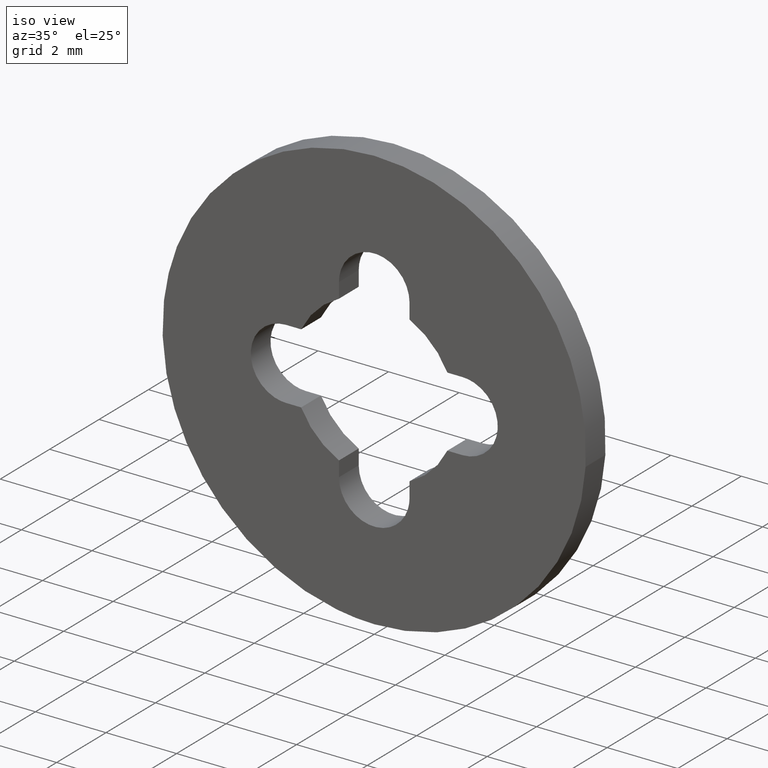
[diagram: clean part render]
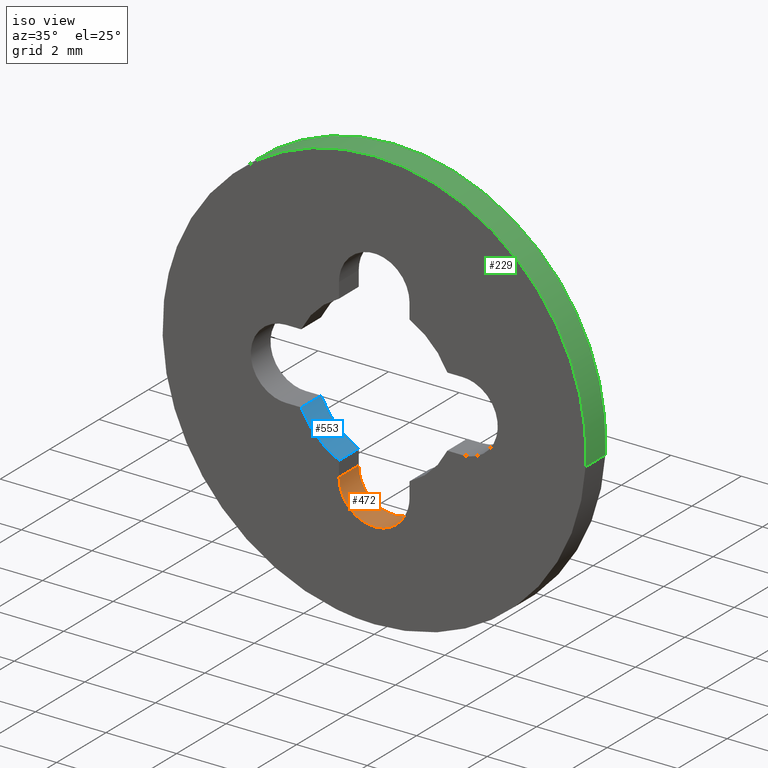
[diagram: same view with three faces highlighted in distinct colors, each labeled with its STEP entity id]
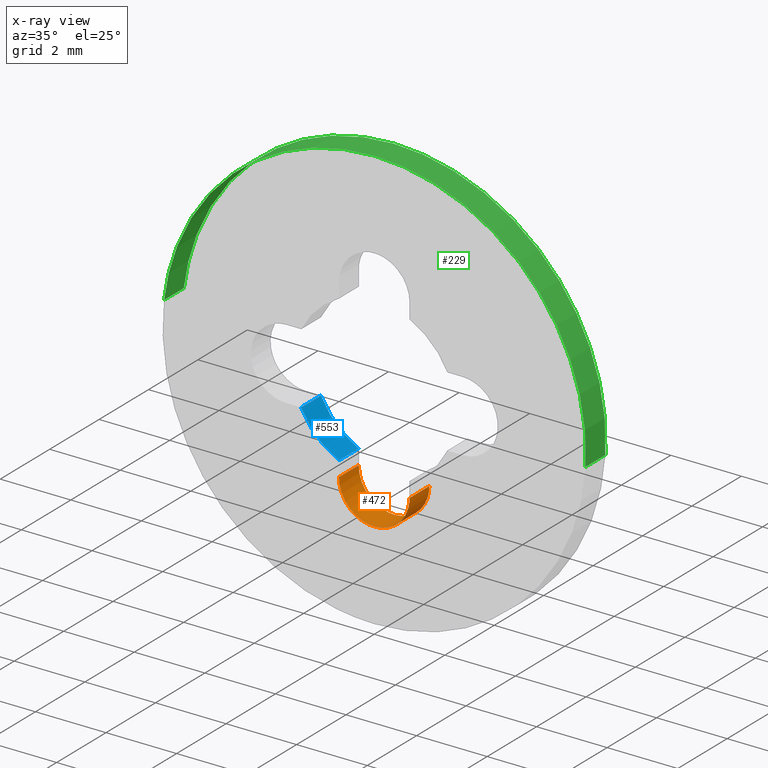
[diagram: x-ray of the same camera — body ghosted, the three highlighted faces saturated]
A machine part, iso view with three faces highlighted in distinct colors.
The next image is the same camera in x-ray (body ghosted, the three faces saturated) — at least one of them is partly hidden behind the body in this view.
Their STEP definitions:

[orange] entity #472 — the highlighted face is a freeform B-spline surface patch.
#385=CARTESIAN_POINT('',(0.999999999999985,0.0,-2.499999825467075));
#386=VERTEX_POINT('',#385);
#393=CARTESIAN_POINT('',(0.999999999999985,0.800000000000023,-2.499999825467075));
#394=VERTEX_POINT('',#393);
#400=CARTESIAN_POINT('',(0.999999999999985,0.800000000000023,-2.499999825467075));
#401=CARTESIAN_POINT('',(0.999999999999985,0.0,-2.499999825467075));
#402=QUASI_UNIFORM_CURVE('',1,(#400,#401),.UNSPECIFIED.,.F.,.U.);
#403=EDGE_CURVE('',#394,#386,#402,.T.);
#408=CARTESIAN_POINT('',(0.999048221581857,0.820000000000024,-2.456380612634666));
#409=CARTESIAN_POINT('',(0.999048221581857,-0.020500000000001,-2.456380612634666));
#410=CARTESIAN_POINT('',(1.045416995952383,0.820000000000024,-3.518400149585318));
#411=CARTESIAN_POINT('',(1.045416995952383,-0.020500000000001,-3.518400149585318));
#412=CARTESIAN_POINT('',(-0.017452406437285,0.820000000000024,-3.499847695156391));
#413=CARTESIAN_POINT('',(-0.017452406437285,-0.020500000000001,-3.499847695156391));
#414=CARTESIAN_POINT('',(-1.080321808826952,0.820000000000024,-3.481295240727462));
#415=CARTESIAN_POINT('',(-1.080321808826952,-0.020500000000001,-3.481295240727462));
#416=CARTESIAN_POINT('',(-0.996917333733127,0.820000000000024,-2.421540904272154));
#417=CARTESIAN_POINT('',(-0.996917333733127,-0.020500000000001,-2.421540904272154));
#425=(BOUNDED_SURFACE()B_SPLINE_SURFACE(1,2,((#408,#410,#412,#414,#416),(#409,#411,#413,#415,#417)),.UNSPECIFIED.,.F.,.F.,.U.)B_SPLINE_SURFACE_WITH_KNOTS((2,2),(3,2,3),(0.0,1.0),(0.0,1.0,2.0),.UNSPECIFIED.)GEOMETRIC_REPRESENTATION_ITEM()RATIONAL_B_SPLINE_SURFACE(((1.0,0.685182990326359,1.0,0.685182990326359,1.0),(1.0,0.685182990326359,1.0,0.685182990326359,1.0)))REPRESENTATION_ITEM('')SURFACE());
#426=CARTESIAN_POINT('',(-1.000000000000018,0.0,-2.500000000000000));
#427=VERTEX_POINT('',#426);
#428=CARTESIAN_POINT('',(-1.000000000000018,0.0,-2.500000000000000));
#429=CARTESIAN_POINT('',(-1.0,0.0,-3.077350307974721));
#430=CARTESIAN_POINT('',(-0.499999949616683,0.0,-3.366025432873258));
#431=CARTESIAN_POINT('',(0.000000100766633,0.0,-3.654700557771795));
#432=CARTESIAN_POINT('',(0.500000100766628,0.0,-3.366025345606791));
#433=CARTESIAN_POINT('',(1.000000100766623,0.0,-3.077350133441787));
#434=CARTESIAN_POINT('',(0.999999999999985,0.0,-2.499999825467075));
#442=(BOUNDED_CURVE()B_SPLINE_CURVE(2,(#428,#429,#430,#431,#432,#433,#434),.UNSPECIFIED.,.F.,.U.)B_SPLINE_CURVE_WITH_KNOTS((3,2,2,3),(0.0,0.333333333333333,0.666666666666667,1.0),.UNSPECIFIED.)CURVE()GEOMETRIC_REPRESENTATION_ITEM()RATIONAL_B_SPLINE_CURVE((1.0,0.866025389240028,1.0,0.866025389240028,1.0,0.866025389240028,1.0))REPRESENTATION_ITEM(''));
#443=EDGE_CURVE('',#427,#386,#442,.T.);
#444=ORIENTED_EDGE('',*,*,#443,.T.);
#445=ORIENTED_EDGE('',*,*,#403,.F.);
#446=CARTESIAN_POINT('',(-1.000000000000018,0.800000000000023,-2.500000000000000));
#447=VERTEX_POINT('',#446);
#448=CARTESIAN_POINT('',(-1.000000000000018,0.800000000000023,-2.500000000000000));
#449=CARTESIAN_POINT('',(-1.0,0.800000000000023,-3.077350307974721));
#450=CARTESIAN_POINT('',(-0.499999949616683,0.800000000000023,-3.366025432873258));
#451=CARTESIAN_POINT('',(0.000000100766633,0.800000000000023,-3.654700557771795));
#452=CARTESIAN_POINT('',(0.500000100766628,0.800000000000023,-3.366025345606791));
#453=CARTESIAN_POINT('',(1.000000100766623,0.800000000000023,-3.077350133441787));
#454=CARTESIAN_POINT('',(0.999999999999985,0.800000000000023,-2.499999825467075));
#462=(BOUNDED_CURVE()B_SPLINE_CURVE(2,(#448,#449,#450,#451,#452,#453,#454),.UNSPECIFIED.,.F.,.U.)B_SPLINE_CURVE_WITH_KNOTS((3,2,2,3),(0.0,0.333333333333333,0.666666666666667,1.0),.UNSPECIFIED.)CURVE()GEOMETRIC_REPRESENTATION_ITEM()RATIONAL_B_SPLINE_CURVE((1.0,0.866025389240028,1.0,0.866025389240028,1.0,0.866025389240028,1.0))REPRESENTATION_ITEM(''));
#463=EDGE_CURVE('',#447,#394,#462,.T.);
#464=ORIENTED_EDGE('',*,*,#463,.F.);
#465=CARTESIAN_POINT('',(-1.000000000000018,0.800000000000023,-2.500000000000000));
#466=CARTESIAN_POINT('',(-1.000000000000018,0.0,-2.500000000000000));
#467=QUASI_UNIFORM_CURVE('',1,(#465,#466),.UNSPECIFIED.,.F.,.U.);
#468=EDGE_CURVE('',#447,#427,#467,.T.);
#469=ORIENTED_EDGE('',*,*,#468,.T.);
#470=EDGE_LOOP('',(#444,#445,#464,#469));
#471=FACE_OUTER_BOUND('',#470,.T.);
#472=ADVANCED_FACE('',(#471),#425,.F.);

[blue] entity #553 — the highlighted face is a freeform B-spline surface patch.
#478=CARTESIAN_POINT('',(-1.000000000000020,0.0,-2.071231517720785));
#479=VERTEX_POINT('',#478);
#486=CARTESIAN_POINT('',(-1.000000000000020,0.800000000000023,-2.071231517720785));
#487=VERTEX_POINT('',#486);
#493=CARTESIAN_POINT('',(-1.000000000000020,0.800000000000023,-2.071231517720785));
#494=CARTESIAN_POINT('',(-1.000000000000020,0.0,-2.071231517720785));
#495=QUASI_UNIFORM_CURVE('',1,(#493,#494),.UNSPECIFIED.,.F.,.U.);
#496=EDGE_CURVE('',#487,#479,#495,.T.);
#501=CARTESIAN_POINT('',(-0.931786230015195,0.820000000000024,-2.102801564949501));
#502=CARTESIAN_POINT('',(-0.931786230015195,-0.020500000000001,-2.102801564949501));
#503=CARTESIAN_POINT('',(-1.743536492991471,0.820000000000024,-1.743101567641065));
#504=CARTESIAN_POINT('',(-1.743536492991471,-0.020500000000001,-1.743101567641065));
#505=CARTESIAN_POINT('',(-2.103033962666878,0.820000000000024,-0.931261591535725));
#506=CARTESIAN_POINT('',(-2.103033962666878,-0.020500000000001,-0.931261591535725));
#514=(BOUNDED_SURFACE()B_SPLINE_SURFACE(1,2,((#501,#503,#505),(#502,#504,#506)),.UNSPECIFIED.,.F.,.F.,.U.)B_SPLINE_SURFACE_WITH_KNOTS((2,2),(3,3),(0.0,1.0),(0.003884344423376,0.940668572610058),.UNSPECIFIED.)GEOMETRIC_REPRESENTATION_ITEM()RATIONAL_B_SPLINE_SURFACE(((0.999410940804473,0.928656460605345,0.991503249342292),(0.999410940804473,0.928656460605345,0.991503249342292)))REPRESENTATION_ITEM('')SURFACE());
#515=CARTESIAN_POINT('',(-2.071231517720795,0.0,-1.0));
#516=VERTEX_POINT('',#515);
#517=CARTESIAN_POINT('',(-2.071231517720797,0.0,-1.000000000000002));
#518=CARTESIAN_POINT('',(-1.722436087763841,0.0,-1.722436087763824));
#519=CARTESIAN_POINT('',(-1.000000000000021,0.0,-2.071231517720788));
#527=(BOUNDED_CURVE()B_SPLINE_CURVE(2,(#517,#518,#519),.UNSPECIFIED.,.F.,.U.)CURVE()GEOMETRIC_REPRESENTATION_ITEM()QUASI_UNIFORM_CURVE()RATIONAL_B_SPLINE_CURVE((1.0,0.944212449032275,1.0))REPRESENTATION_ITEM(''));
#528=EDGE_CURVE('',#516,#479,#527,.T.);
#529=ORIENTED_EDGE('',*,*,#528,.T.);
#530=ORIENTED_EDGE('',*,*,#496,.F.);
#531=CARTESIAN_POINT('',(-2.071231517720795,0.800000000000023,-1.0));
#532=VERTEX_POINT('',#531);
#533=CARTESIAN_POINT('',(-2.071231517720797,0.800000000000023,-1.000000000000002));
#534=CARTESIAN_POINT('',(-1.722436087763841,0.800000000000023,-1.722436087763824));
#535=CARTESIAN_POINT('',(-1.000000000000021,0.800000000000023,-2.071231517720788));
#543=(BOUNDED_CURVE()B_SPLINE_CURVE(2,(#533,#534,#535),.UNSPECIFIED.,.F.,.U.)CURVE()GEOMETRIC_REPRESENTATION_ITEM()QUASI_UNIFORM_CURVE()RATIONAL_B_SPLINE_CURVE((1.0,0.944212449032275,1.0))REPRESENTATION_ITEM(''));
#544=EDGE_CURVE('',#532,#487,#543,.T.);
#545=ORIENTED_EDGE('',*,*,#544,.F.);
#546=CARTESIAN_POINT('',(-2.071231517720795,0.800000000000023,-1.0));
#547=CARTESIAN_POINT('',(-2.071231517720795,0.0,-1.0));
#548=QUASI_UNIFORM_CURVE('',1,(#546,#547),.UNSPECIFIED.,.F.,.U.);
#549=EDGE_CURVE('',#532,#516,#548,.T.);
#550=ORIENTED_EDGE('',*,*,#549,.T.);
#551=EDGE_LOOP('',(#529,#530,#545,#550));
#552=FACE_OUTER_BOUND('',#551,.T.);
#553=ADVANCED_FACE('',(#552),#514,.F.);

[green] entity #229 — the highlighted face is a freeform B-spline surface patch.
#66=CARTESIAN_POINT('',(-5.958057609161914,4.394370E-014,0.708201613873624));
#67=VERTEX_POINT('',#66);
#85=CARTESIAN_POINT('',(-5.958057603599299,0.800000000000023,0.708201660671828));
#86=VERTEX_POINT('',#85);
#87=CARTESIAN_POINT('',(-5.958057603599299,0.800000000000023,0.708201660671828));
#88=CARTESIAN_POINT('',(-5.958057609161914,4.394370E-014,0.708201613873624));
#89=QUASI_UNIFORM_CURVE('',1,(#87,#88),.UNSPECIFIED.,.F.,.U.);
#90=EDGE_CURVE('',#86,#67,#89,.T.);
#109=CARTESIAN_POINT('',(5.988808919991055,0.800000000000023,-0.366289120546966));
#110=VERTEX_POINT('',#109);
#124=CARTESIAN_POINT('',(5.988808921607088,2.891784E-014,-0.366289094124749));
#125=VERTEX_POINT('',#124);
#126=CARTESIAN_POINT('',(5.988808919991055,0.800000000000023,-0.366289120546966));
#127=CARTESIAN_POINT('',(5.988808921607088,2.891784E-014,-0.366289094124749));
#128=QUASI_UNIFORM_CURVE('',1,(#126,#127),.UNSPECIFIED.,.F.,.U.);
#129=EDGE_CURVE('',#110,#125,#128,.T.);
#147=CARTESIAN_POINT('',(5.988808790531200,0.820000000000024,-0.366291237209142));
#148=CARTESIAN_POINT('',(6.355100027740342,0.820000000000024,5.622517553322059));
#149=CARTESIAN_POINT('',(0.366291237209142,0.820000000000024,5.988808790531200));
#150=CARTESIAN_POINT('',(-5.289260945037006,0.820000000000024,6.334717180395164));
#151=CARTESIAN_POINT('',(-5.958057158181998,0.820000000000024,0.708205407940551));
#152=CARTESIAN_POINT('',(5.988808790531200,-0.020500000000001,-0.366291237209142));
#153=CARTESIAN_POINT('',(6.355100027740342,-0.020500000000001,5.622517553322059));
#154=CARTESIAN_POINT('',(0.366291237209142,-0.020500000000001,5.988808790531200));
#155=CARTESIAN_POINT('',(-5.289260945037006,-0.020500000000001,6.334717180395164));
#156=CARTESIAN_POINT('',(-5.958057158181998,-0.020500000000001,0.708205407940551));
#164=(BOUNDED_SURFACE()B_SPLINE_SURFACE(2,1,((#147,#152),(#148,#153),(#149,#154),(#150,#155),(#151,#156)),.UNSPECIFIED.,.F.,.F.,.U.)B_SPLINE_SURFACE_WITH_KNOTS((3,2,3),(2,2),(0.0,9.941125496954278,19.484605974030391),(0.0,1.0),.UNSPECIFIED.)GEOMETRIC_REPRESENTATION_ITEM()RATIONAL_B_SPLINE_SURFACE(((1.0,1.0),(0.707106781186548,0.707106781186548),(1.0,1.0),(0.718822509939086,0.718822509939086),(0.977505800795127,0.977505800795127)))REPRESENTATION_ITEM('')SURFACE());
#165=CARTESIAN_POINT('',(0.0,0.0,6.0));
#166=VERTEX_POINT('',#165);
#167=CARTESIAN_POINT('',(0.0,0.0,6.0));
#168=CARTESIAN_POINT('',(-5.329050573114072,0.0,6.0));
#169=CARTESIAN_POINT('',(-5.958057609161915,4.394370E-014,0.708201613873624));
#177=(BOUNDED_CURVE()B_SPLINE_CURVE(2,(#167,#168,#169),.UNSPECIFIED.,.F.,.U.)B_SPLINE_CURVE_WITH_KNOTS((3,3),(0.0,0.229562581136241),.UNSPECIFIED.)CURVE()GEOMETRIC_REPRESENTATION_ITEM()RATIONAL_B_SPLINE_CURVE((1.0,0.731050706767529,0.956026965128767))REPRESENTATION_ITEM(''));
#178=EDGE_CURVE('',#166,#67,#177,.T.);
#179=ORIENTED_EDGE('',*,*,#178,.F.);
#180=CARTESIAN_POINT('',(5.988808921607088,2.891784E-014,-0.366289094124749));
#181=CARTESIAN_POINT('',(6.000000000000001,0.0,-0.183315505244867));
#182=CARTESIAN_POINT('',(6.0,0.0,0.0));
#183=CARTESIAN_POINT('',(6.0,0.0,6.0));
#184=CARTESIAN_POINT('',(0.0,0.0,6.0));
#192=(BOUNDED_CURVE()B_SPLINE_CURVE(2,(#180,#181,#182,#183,#184),.UNSPECIFIED.,.F.,.U.)B_SPLINE_CURVE_WITH_KNOTS((3,2,3),(0.739333023987528,0.750000000000000,1.0),.UNSPECIFIED.)CURVE()GEOMETRIC_REPRESENTATION_ITEM()RATIONAL_B_SPLINE_CURVE((0.976072174005725,0.987502860242804,1.0,0.707106781186548,1.0))REPRESENTATION_ITEM(''));
#193=EDGE_CURVE('',#125,#166,#192,.T.);
#194=ORIENTED_EDGE('',*,*,#193,.F.);
#195=ORIENTED_EDGE('',*,*,#129,.F.);
#196=CARTESIAN_POINT('',(0.0,0.800000000000023,6.0));
#197=VERTEX_POINT('',#196);
#198=CARTESIAN_POINT('',(5.988808919991055,0.800000000000023,-0.366289120546966));
#199=CARTESIAN_POINT('',(6.0,0.800000000000023,-0.183315518493018));
#200=CARTESIAN_POINT('',(6.0,0.800000000000023,0.0));
#201=CARTESIAN_POINT('',(6.0,0.800000000000023,6.0));
#202=CARTESIAN_POINT('',(0.0,0.800000000000023,6.0));
#210=(BOUNDED_CURVE()B_SPLINE_CURVE(2,(#198,#199,#200,#201,#202),.UNSPECIFIED.,.F.,.U.)B_SPLINE_CURVE_WITH_KNOTS((3,2,3),(0.739333023226263,0.750000000000000,1.0),.UNSPECIFIED.)CURVE()GEOMETRIC_REPRESENTATION_ITEM()RATIONAL_B_SPLINE_CURVE((0.976072172374189,0.987502859350927,1.0,0.707106781186548,1.0))REPRESENTATION_ITEM(''));
#211=EDGE_CURVE('',#110,#197,#210,.T.);
#212=ORIENTED_EDGE('',*,*,#211,.T.);
#213=CARTESIAN_POINT('',(0.0,0.800000000000023,6.0));
#214=CARTESIAN_POINT('',(-5.329050530961814,0.800000000000023,6.000000000000001));
#215=CARTESIAN_POINT('',(-5.958057603599301,0.800000000000023,0.708201660671828));
#223=(BOUNDED_CURVE()B_SPLINE_CURVE(2,(#213,#214,#215),.UNSPECIFIED.,.F.,.U.)B_SPLINE_CURVE_WITH_KNOTS((3,3),(0.0,0.229562579808786),.UNSPECIFIED.)CURVE()GEOMETRIC_REPRESENTATION_ITEM()RATIONAL_B_SPLINE_CURVE((1.0,0.731050708322738,0.956026962526900))REPRESENTATION_ITEM(''));
#224=EDGE_CURVE('',#197,#86,#223,.T.);
#225=ORIENTED_EDGE('',*,*,#224,.T.);
#226=ORIENTED_EDGE('',*,*,#90,.T.);
#227=EDGE_LOOP('',(#179,#194,#195,#212,#225,#226));
#228=FACE_OUTER_BOUND('',#227,.T.);
#229=ADVANCED_FACE('',(#228),#164,.T.);